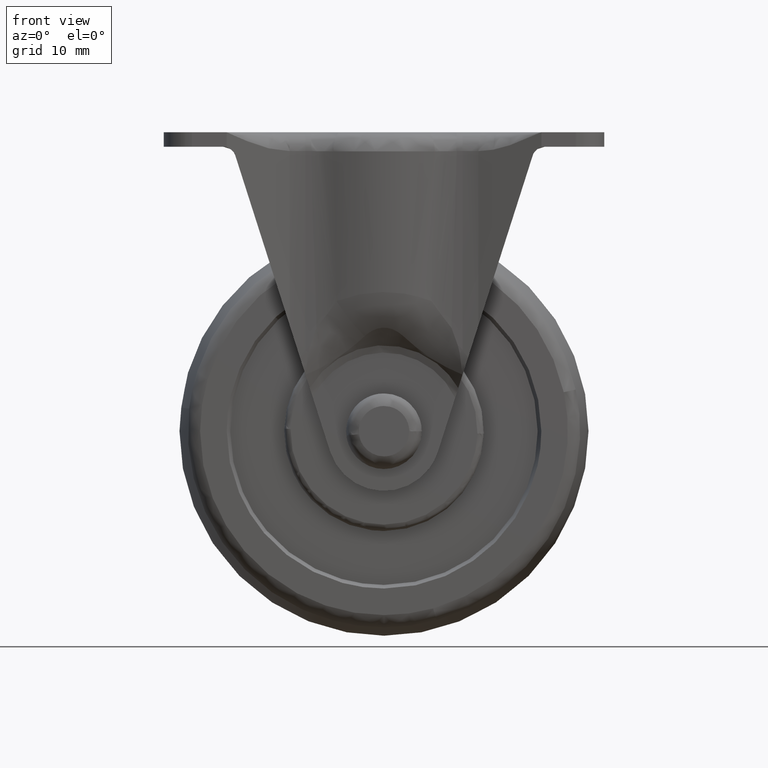
[diagram: clean part render]
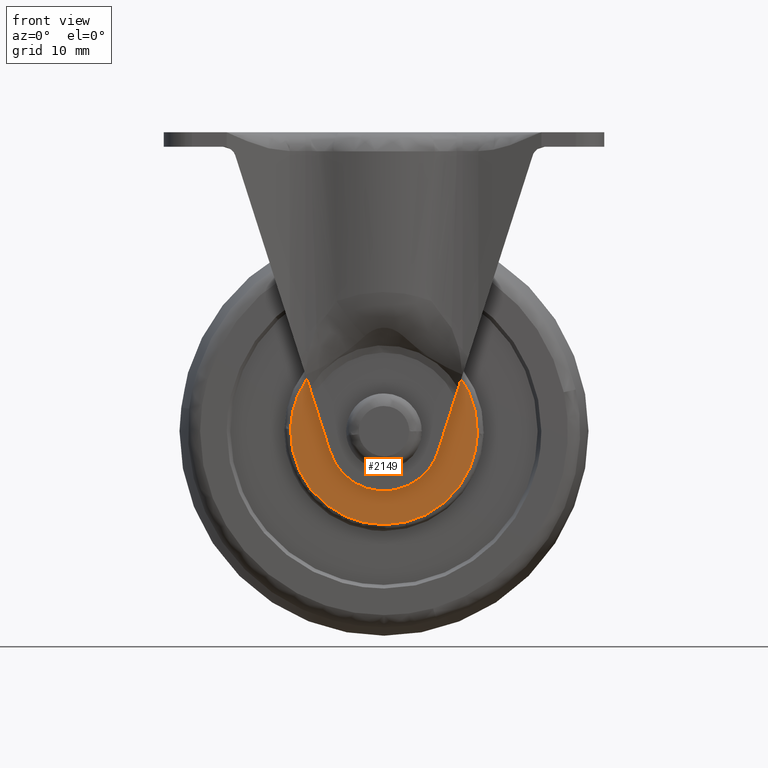
[diagram: same view with one face highlighted and labeled with its STEP entity id]
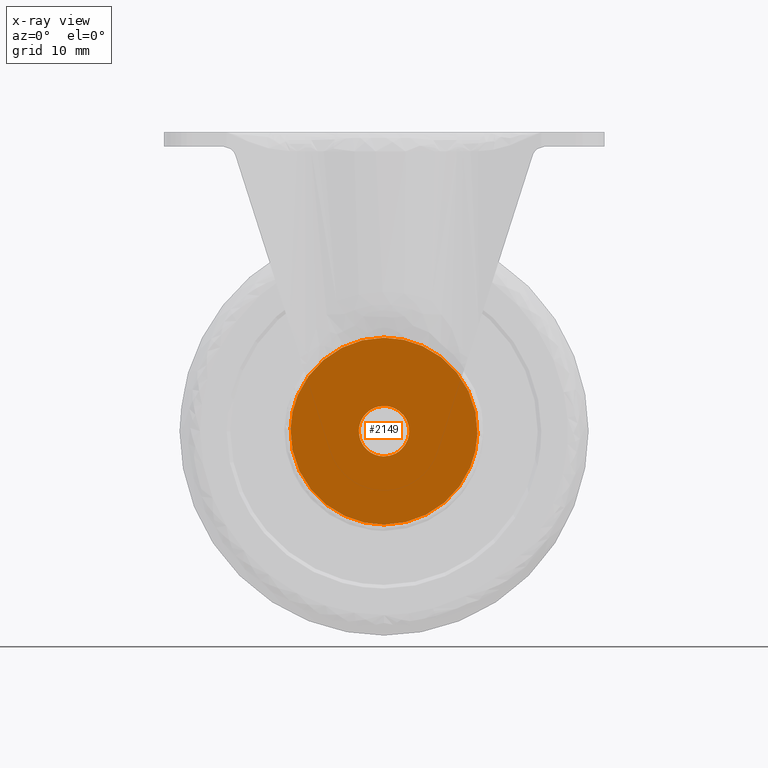
[diagram: x-ray of the same camera — body ghosted, the highlighted face saturated]
A machine part, front view. The second image highlights one B-rep face of the part: STEP entity #2149.
The next image is the same camera in x-ray: the body ghosted, the highlighted face saturated — about 0% of this face is hidden behind the body in this view.
In plain terms, the highlighted face is a freeform B-spline surface patch.
Its self-contained STEP definition (entity closure, byte-faithful):
#83=CARTESIAN_POINT('',(3.054222801857205,-15.0,2.582968348483437));
#84=VERTEX_POINT('',#83);
#90=CARTESIAN_POINT('',(0.0,-15.0,4.0));
#91=VERTEX_POINT('',#90);
#92=CARTESIAN_POINT('',(3.054222801857205,-15.0,2.582968348483437));
#93=CARTESIAN_POINT('',(2.704016717927104,-14.999999999999989,2.998096188303050));
#94=CARTESIAN_POINT('',(1.976486673535471,-15.000000000000011,3.567364939220854));
#95=CARTESIAN_POINT('',(0.868800014107006,-14.999999999999980,3.941410152978961));
#96=CARTESIAN_POINT('',(0.253397200903179,-14.999999999999989,4.000006335800379));
#97=CARTESIAN_POINT('',(0.0,-15.0,4.0));
#98=B_SPLINE_CURVE_WITH_KNOTS('',3,(#92,#93,#94,#95,#96,#97),.UNSPECIFIED.,.F.,.U.,(4,1,1,4),(0.000000115147884,1.629073111958397,2.715090705011884,3.475313326845505),.UNSPECIFIED.);
#99=EDGE_CURVE('',#84,#91,#98,.T.);
#101=CARTESIAN_POINT('',(-3.999999999999813,-15.0,-0.000001223305500));
#102=VERTEX_POINT('',#101);
#103=CARTESIAN_POINT('',(0.0,-15.0,4.0));
#104=CARTESIAN_POINT('',(-0.589254097343018,-15.000000000000020,4.000919144995991));
#105=CARTESIAN_POINT('',(-1.406569151406213,-14.999999999999980,3.815968699582129));
#106=CARTESIAN_POINT('',(-2.399746901152039,-15.0,3.236846765912496));
#107=CARTESIAN_POINT('',(-3.010506541109636,-15.000000000000011,2.683347089103513));
#108=CARTESIAN_POINT('',(-3.540689312378943,-14.999999999999989,1.930571715911711));
#109=CARTESIAN_POINT('',(-3.906593665570804,-15.000000000000011,1.047145352831876));
#110=CARTESIAN_POINT('',(-4.000129178618779,-15.000000000000011,0.359980722542695));
#111=CARTESIAN_POINT('',(-3.999999999999813,-15.0,-0.000001223305500));
#112=B_SPLINE_CURVE_WITH_KNOTS('',3,(#103,#104,#105,#106,#107,#108,#109,#110,#111),.UNSPECIFIED.,.F.,.U.,(4,1,1,1,1,1,4),(0.000000414587961,1.767192478967512,2.454486561993824,3.436130248282221,4.221592027101352,5.203423679657038,6.283343666861798),.UNSPECIFIED.);
#113=EDGE_CURVE('',#91,#102,#112,.T.);
#115=CARTESIAN_POINT('',(0.0,-15.0,-4.0));
#116=VERTEX_POINT('',#115);
#117=CARTESIAN_POINT('',(-3.999999999999813,-15.0,-0.000001223305500));
#118=CARTESIAN_POINT('',(-4.000933215268693,-14.999999999999980,-0.589245699633515));
#119=CARTESIAN_POINT('',(-3.801162607310727,-15.000000000000041,-1.471971884204495));
#120=CARTESIAN_POINT('',(-3.196343765626053,-14.999999999999970,-2.452902659898485));
#121=CARTESIAN_POINT('',(-2.471064396574958,-14.999999999999980,-3.215418250105504));
#122=CARTESIAN_POINT('',(-1.407111396562555,-15.000000000000140,-3.835266744170238));
#123=CARTESIAN_POINT('',(-0.458168519691300,-14.999999999999901,-4.000284540540576));
#124=CARTESIAN_POINT('',(0.0,-15.0,-4.0));
#125=B_SPLINE_CURVE_WITH_KNOTS('',3,(#117,#118,#119,#120,#121,#122,#123,#124),.UNSPECIFIED.,.F.,.U.,(4,1,1,1,1,4),(0.000000416261626,1.767192092555236,2.650793399419054,3.436129492843681,4.908863888383272,6.283342287876989),.UNSPECIFIED.);
#126=EDGE_CURVE('',#102,#116,#125,.T.);
#128=CARTESIAN_POINT('',(2.753417945987257,-15.0,-2.901497401594078));
#129=VERTEX_POINT('',#128);
#130=CARTESIAN_POINT('',(0.0,-15.0,-4.0));
#131=CARTESIAN_POINT('',(0.474566428972325,-15.000000000000011,-4.000338127945619));
#132=CARTESIAN_POINT('',(1.486560234101798,-14.999999999999970,-3.817666451612814));
#133=CARTESIAN_POINT('',(2.363704327659397,-15.000000000000041,-3.272199892714254));
#134=CARTESIAN_POINT('',(2.753417945987257,-15.0,-2.901497401594078));
#135=B_SPLINE_CURVE_WITH_KNOTS('',3,(#130,#131,#132,#133,#134),.UNSPECIFIED.,.F.,.U.,(4,1,4),(0.000000113901035,1.423599162455076,3.036943792351190),.UNSPECIFIED.);
#136=EDGE_CURVE('',#116,#129,#135,.T.);
#218=CARTESIAN_POINT('',(3.999999999999813,-15.0,0.000001223305524));
#219=VERTEX_POINT('',#218);
#220=CARTESIAN_POINT('',(2.753417945987257,-15.0,-2.901497401594078));
#221=CARTESIAN_POINT('',(3.121755485357662,-15.000000000000011,-2.552642682704601));
#222=CARTESIAN_POINT('',(3.762298867683088,-15.0,-1.656265164444995));
#223=CARTESIAN_POINT('',(4.000857346887065,-15.000000000000011,-0.575006025634895));
#224=CARTESIAN_POINT('',(3.999999999999813,-15.0,0.000001223305524));
#225=B_SPLINE_CURVE_WITH_KNOTS('',3,(#220,#221,#222,#223,#224),.UNSPECIFIED.,.F.,.U.,(4,1,4),(0.000000117722640,1.521777067838765,3.246400692320742),.UNSPECIFIED.);
#226=EDGE_CURVE('',#129,#219,#225,.T.);
#228=CARTESIAN_POINT('',(3.999999999999813,-15.0,0.000001223305524));
#229=CARTESIAN_POINT('',(4.000473054688714,-15.000000000000011,0.497311495996944));
#230=CARTESIAN_POINT('',(3.822985155357888,-14.999999999999959,1.432882411853510));
#231=CARTESIAN_POINT('',(3.337788423579321,-15.000000000000041,2.248112022976717));
#232=CARTESIAN_POINT('',(3.054222801857205,-15.0,2.582968348483437));
#233=B_SPLINE_CURVE_WITH_KNOTS('',3,(#228,#229,#230,#231,#232),.UNSPECIFIED.,.F.,.U.,(4,1,4),(0.000000100357961,1.491733943991414,2.808033993557359),.UNSPECIFIED.);
#234=EDGE_CURVE('',#219,#84,#233,.T.);
#1785=CARTESIAN_POINT('',(14.845308220409089,-15.0,-0.373181867634957));
#1786=VERTEX_POINT('',#1785);
#1797=CARTESIAN_POINT('',(0.0,-15.0,-14.849998000000021));
#1798=VERTEX_POINT('',#1797);
#1799=CARTESIAN_POINT('',(0.0,-15.0,-14.849998000000021));
#1800=CARTESIAN_POINT('',(1.135717237426693,-14.999999999999989,-14.850245738263800));
#1801=CARTESIAN_POINT('',(3.048336401545059,-15.000000000000020,-14.629388562889840));
#1802=CARTESIAN_POINT('',(6.133992058351831,-15.0,-13.648423960525410));
#1803=CARTESIAN_POINT('',(8.908744570644261,-15.000000000000041,-12.062484586649770));
#1804=CARTESIAN_POINT('',(11.129628275044899,-14.999999999999970,-9.947948349004442));
#1805=CARTESIAN_POINT('',(12.764127966302050,-14.999999999999980,-7.729355339471258));
#1806=CARTESIAN_POINT('',(13.870871346851800,-15.000000000000060,-5.528297659658610));
#1807=CARTESIAN_POINT('',(14.628698867723919,-14.999999999999931,-2.938770071089540));
#1808=CARTESIAN_POINT('',(14.822868287563979,-15.000000000000099,-1.269505460058298));
#1809=CARTESIAN_POINT('',(14.845308220409089,-15.0,-0.373181867634957));
#1810=B_SPLINE_CURVE_WITH_KNOTS('',3,(#1799,#1800,#1801,#1802,#1803,#1804,#1805,#1806,#1807,#1808,#1809),.UNSPECIFIED.,.F.,.U.,(4,1,1,1,1,1,1,1,4),(0.000000222483511,3.407110916619430,5.738311046004114,9.683464933247691,12.911189432159130,14.883733735174360,17.932231674162420,20.263431056372362,22.953240607592459),.UNSPECIFIED.);
#1811=EDGE_CURVE('',#1798,#1786,#1810,.T.);
#1813=CARTESIAN_POINT('',(-14.845308220409089,-15.0,0.373181867634966));
#1814=VERTEX_POINT('',#1813);
#1815=CARTESIAN_POINT('',(-14.845308220409089,-15.0,0.373181867634966));
#1816=CARTESIAN_POINT('',(-14.876658621066021,-15.000000000000011,-0.860802783277899));
#1817=CARTESIAN_POINT('',(-14.647406027708120,-15.0,-3.150667952307082));
#1818=CARTESIAN_POINT('',(-13.681445051144861,-15.000000000000020,-5.968851853590388));
#1819=CARTESIAN_POINT('',(-12.454703000364351,-14.999999999999970,-8.188887920196077));
#1820=CARTESIAN_POINT('',(-11.022574811425009,-15.000000000000069,-10.055811670635190));
#1821=CARTESIAN_POINT('',(-9.387783121252426,-14.999999999999970,-11.572905299557720));
#1822=CARTESIAN_POINT('',(-7.404544362329609,-15.000000000000121,-12.943530446379730));
#1823=CARTESIAN_POINT('',(-5.281056658212657,-14.999999999999860,-13.966327099833681));
#1824=CARTESIAN_POINT('',(-2.653797756613286,-15.000000000000281,-14.687865070254110));
#1825=CARTESIAN_POINT('',(-0.925754185540574,-14.999999999999710,-14.850101202827091));
#1826=CARTESIAN_POINT('',(0.0,-15.0,-14.849998000000021));
#1827=B_SPLINE_CURVE_WITH_KNOTS('',3,(#1815,#1816,#1817,#1818,#1819,#1820,#1821,#1822,#1823,#1824,#1825,#1826),.UNSPECIFIED.,.F.,.U.,(4,1,1,1,1,1,1,1,1,4),(0.000000218885148,3.703068961105235,6.850697179829698,8.887436330731550,11.294466640357109,13.886476725792150,15.552889428004461,18.515401041626841,20.922439789479512,23.699696972031990),.UNSPECIFIED.);
#1828=EDGE_CURVE('',#1814,#1798,#1827,.T.);
#1868=CARTESIAN_POINT('',(0.0,-15.0,14.849998000000021));
#1869=VERTEX_POINT('',#1868);
#1870=CARTESIAN_POINT('',(0.0,-15.0,14.849998000000021));
#1871=CARTESIAN_POINT('',(-0.896611193375318,-15.0,14.850076682465680));
#1872=CARTESIAN_POINT('',(-2.689785736846262,-15.000000000000060,14.687113858925249));
#1873=CARTESIAN_POINT('',(-5.291605238960550,-14.999999999999840,13.962346825855899));
#1874=CARTESIAN_POINT('',(-7.882223917424469,-15.000000000000250,12.701931586443401));
#1875=CARTESIAN_POINT('',(-10.415273193310520,-14.999999999999730,10.768227575881751));
#1876=CARTESIAN_POINT('',(-12.521346532825641,-15.000000000000060,8.212611620177020));
#1877=CARTESIAN_POINT('',(-13.870853421320589,-15.000000000000041,5.528282313873575));
#1878=CARTESIAN_POINT('',(-14.628698439713460,-14.999999999999931,2.938771357367571));
#1879=CARTESIAN_POINT('',(-14.822868560426601,-15.000000000000110,1.269504694573769));
#1880=CARTESIAN_POINT('',(-14.845308220409089,-15.0,0.373181867634966));
#1881=B_SPLINE_CURVE_WITH_KNOTS('',3,(#1870,#1871,#1872,#1873,#1874,#1875,#1876,#1877,#1878,#1879,#1880),.UNSPECIFIED.,.F.,.U.,(4,1,1,1,1,1,1,1,4),(0.000000222486566,2.689831303115373,5.379665048784059,8.069514305660336,11.297365509254140,14.883733735174500,17.932231674162441,20.263431056372362,22.953240607592470),.UNSPECIFIED.);
#1882=EDGE_CURVE('',#1869,#1814,#1881,.T.);
#1884=CARTESIAN_POINT('',(14.845308220409089,-15.0,-0.373181867634957));
#1885=CARTESIAN_POINT('',(14.867085260509301,-15.000000000000011,0.490573460108999));
#1886=CARTESIAN_POINT('',(14.759285377356560,-15.000000000000011,2.221905687773200));
#1887=CARTESIAN_POINT('',(14.192673992384719,-14.999999999999970,4.570687289531625));
#1888=CARTESIAN_POINT('',(13.127909693034960,-15.000000000000030,7.142911323486223));
#1889=CARTESIAN_POINT('',(11.443024075155099,-15.000000000000011,9.682530414511117));
#1890=CARTESIAN_POINT('',(9.030079100880254,-15.000000000000030,11.921525950145400));
#1891=CARTESIAN_POINT('',(6.640851412954911,-14.999999999999901,13.361189811488851));
#1892=CARTESIAN_POINT('',(3.702696707354940,-15.000000000000030,14.514680833547210));
#1893=CARTESIAN_POINT('',(1.481313774776112,-15.000000000000030,14.850715637413860));
#1894=CARTESIAN_POINT('',(0.0,-15.0,14.849998000000021));
#1895=B_SPLINE_CURVE_WITH_KNOTS('',3,(#1884,#1885,#1886,#1887,#1888,#1889,#1890,#1891,#1892,#1893,#1894),.UNSPECIFIED.,.F.,.U.,(4,1,1,1,1,1,1,1,4),(0.000000218887095,2.592099032645486,5.184304882626403,7.221024206210348,10.924093497079131,14.256831679938291,17.034144551499420,19.256028992663659,23.699696972031980),.UNSPECIFIED.);
#1896=EDGE_CURVE('',#1786,#1869,#1895,.T.);
#2130=CARTESIAN_POINT('',(-16.328354732796040,-15.0,16.333513300240298));
#2131=CARTESIAN_POINT('',(-16.328354732796040,-15.0,-16.333513565778951));
#2132=CARTESIAN_POINT('',(16.328355263705639,-15.0,16.333513300240298));
#2133=CARTESIAN_POINT('',(16.328355263705639,-15.0,-16.333513565778951));
#2134=B_SPLINE_SURFACE_WITH_KNOTS('',1,1,((#2130,#2132),(#2131,#2133)),.UNSPECIFIED.,.F.,.F.,.U.,(2,2),(2,2),(0.0,32.667026866019242),(0.0,32.656709996501682),.UNSPECIFIED.);
#2135=ORIENTED_EDGE('',*,*,#1811,.T.);
#2136=ORIENTED_EDGE('',*,*,#1896,.T.);
#2137=ORIENTED_EDGE('',*,*,#1882,.T.);
#2138=ORIENTED_EDGE('',*,*,#1828,.T.);
#2139=EDGE_LOOP('',(#2135,#2136,#2137,#2138));
#2140=FACE_OUTER_BOUND('',#2139,.T.);
#2141=ORIENTED_EDGE('',*,*,#113,.F.);
#2142=ORIENTED_EDGE('',*,*,#99,.F.);
#2143=ORIENTED_EDGE('',*,*,#234,.F.);
#2144=ORIENTED_EDGE('',*,*,#226,.F.);
#2145=ORIENTED_EDGE('',*,*,#136,.F.);
#2146=ORIENTED_EDGE('',*,*,#126,.F.);
#2147=EDGE_LOOP('',(#2141,#2142,#2143,#2144,#2145,#2146));
#2148=FACE_BOUND('',#2147,.T.);
#2149=ADVANCED_FACE('',(#2140,#2148),#2134,.T.);